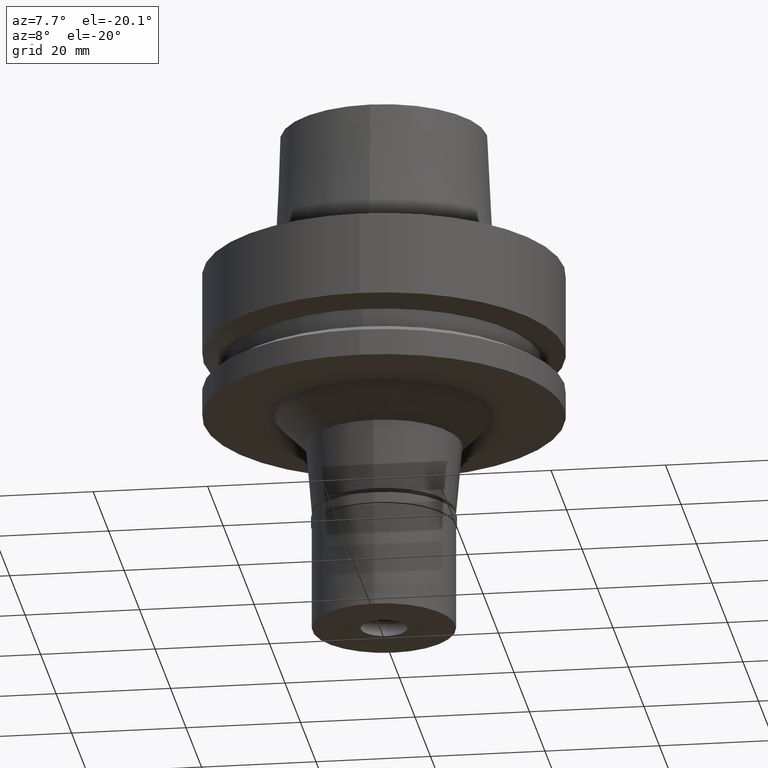
[diagram: clean part render]
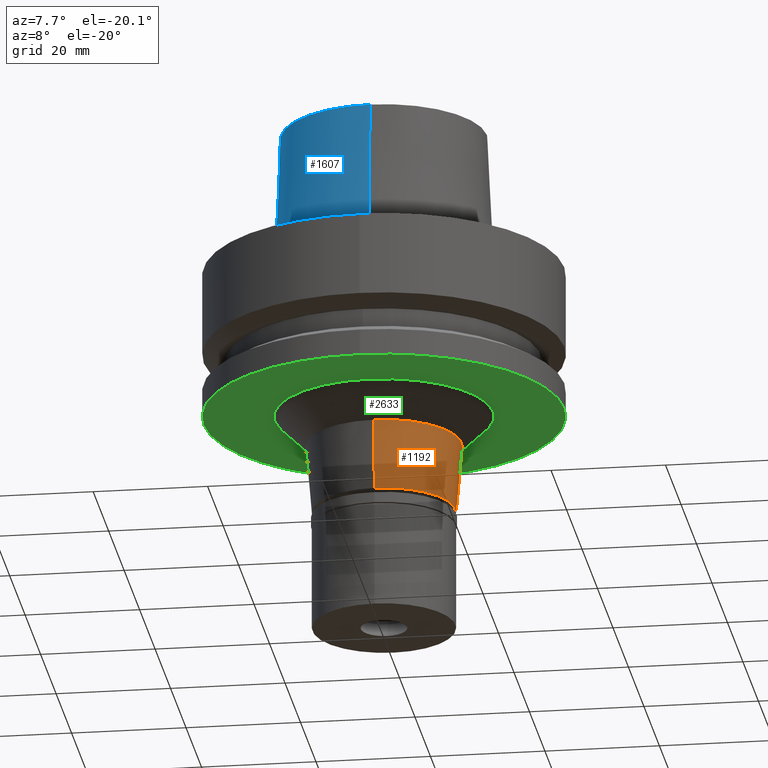
[diagram: same view with three faces highlighted in distinct colors, each labeled with its STEP entity id]
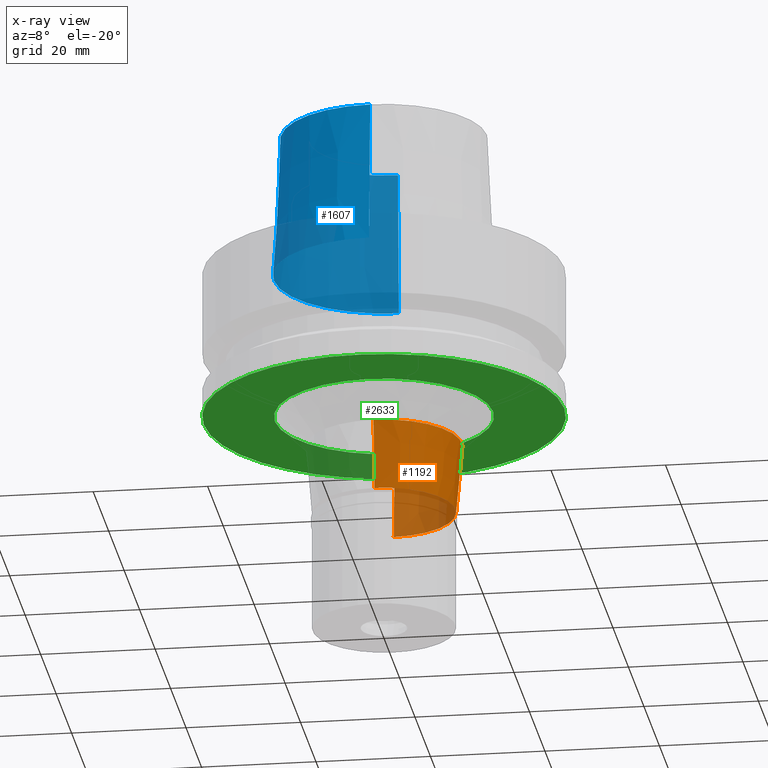
[diagram: x-ray of the same camera — body ghosted, the three highlighted faces saturated]
A machine part, auxiliary view with three faces highlighted in distinct colors.
The next image is the same camera in x-ray (body ghosted, the three faces saturated) — at least one of them is partly hidden behind the body in this view.
Their STEP definitions:

[orange] entity #1192 — the highlighted conical surface has half-angle 5 deg.
#20 = EDGE_LOOP ( 'NONE', ( #954, #818, #1696, #1709 ) ) ;
#90 = CARTESIAN_POINT ( 'NONE',  ( 0.0000000000000000000, 0.0000000000000000000, -31.50000000000000000 ) ) ;
#240 = VERTEX_POINT ( 'NONE', #1442 ) ;
#283 = DIRECTION ( 'NONE',  ( 0.0000000000000000000, -1.000000000000000000, 0.0000000000000000000 ) ) ;
#647 = VECTOR ( 'NONE', #975, 1000.000000000000000 ) ;
#663 = CARTESIAN_POINT ( 'NONE',  ( 0.0000000000000000000, -13.56736169502000067, -31.50000000000000000 ) ) ;
#715 = DIRECTION ( 'NONE',  ( 0.0000000000000000000, -1.000000000000000000, 0.0000000000000000000 ) ) ;
#806 = CARTESIAN_POINT ( 'NONE',  ( 0.0000000000000000000, 13.56736169502000067, -31.50000000000000000 ) ) ;
#818 = ORIENTED_EDGE ( 'NONE', *, *, #2692, .T. ) ;
#875 = CIRCLE ( 'NONE', #2391, 12.50000000000000000 ) ;
#909 = AXIS2_PLACEMENT_3D ( 'NONE', #1695, #1901, #2769 ) ;
#914 = VERTEX_POINT ( 'NONE', #1663 ) ;
#945 = VERTEX_POINT ( 'NONE', #2055 ) ;
#954 = ORIENTED_EDGE ( 'NONE', *, *, #2390, .F. ) ;
#975 = DIRECTION ( 'NONE',  ( 0.0000000000000000000, -0.08715574274778295494, -0.9961946980917345540 ) ) ;
#1000 = VECTOR ( 'NONE', #2569, 1000.000000000000000 ) ;
#1050 = EDGE_CURVE ( 'NONE', #2671, #240, #2723, .T. ) ;
#1147 = CONICAL_SURFACE ( 'NONE', #909, 13.03368084751000033, 0.08726646259969973729 ) ;
#1192 = ADVANCED_FACE ( 'NONE', ( #1521 ), #1147, .T. ) ;
#1442 = CARTESIAN_POINT ( 'NONE',  ( 0.0000000000000000000, 12.50000000000000000, -43.70000000000000284 ) ) ;
#1520 = LINE ( 'NONE', #663, #1000 ) ;
#1521 = FACE_OUTER_BOUND ( 'NONE', #20, .T. ) ;
#1545 = AXIS2_PLACEMENT_3D ( 'NONE', #90, #2229, #283 ) ;
#1663 = CARTESIAN_POINT ( 'NONE',  ( 0.0000000000000000000, -12.50000000000000000, -43.70000000000000284 ) ) ;
#1695 = CARTESIAN_POINT ( 'NONE',  ( 0.0000000000000000000, 0.0000000000000000000, -37.60000000000000142 ) ) ;
#1696 = ORIENTED_EDGE ( 'NONE', *, *, #2347, .T. ) ;
#1709 = ORIENTED_EDGE ( 'NONE', *, *, #1050, .F. ) ;
#1901 = DIRECTION ( 'NONE',  ( 0.0000000000000000000, 0.0000000000000000000, 1.000000000000000000 ) ) ;
#2040 = CARTESIAN_POINT ( 'NONE',  ( 0.0000000000000000000, 0.0000000000000000000, -43.70000000000000284 ) ) ;
#2055 = CARTESIAN_POINT ( 'NONE',  ( 0.0000000000000000000, -13.56736169502000067, -31.50000000000000000 ) ) ;
#2229 = DIRECTION ( 'NONE',  ( 0.0000000000000000000, 0.0000000000000000000, 1.000000000000000000 ) ) ;
#2242 = DIRECTION ( 'NONE',  ( 0.0000000000000000000, 0.0000000000000000000, 1.000000000000000000 ) ) ;
#2260 = CIRCLE ( 'NONE', #1545, 13.56736169502000067 ) ;
#2347 = EDGE_CURVE ( 'NONE', #914, #240, #875, .T. ) ;
#2390 = EDGE_CURVE ( 'NONE', #945, #2671, #2260, .T. ) ;
#2391 = AXIS2_PLACEMENT_3D ( 'NONE', #2040, #2242, #715 ) ;
#2569 = DIRECTION ( 'NONE',  ( 0.0000000000000000000, 0.08715574274778295494, -0.9961946980917345540 ) ) ;
#2671 = VERTEX_POINT ( 'NONE', #2780 ) ;
#2692 = EDGE_CURVE ( 'NONE', #945, #914, #1520, .T. ) ;
#2723 = LINE ( 'NONE', #806, #647 ) ;
#2769 = DIRECTION ( 'NONE',  ( 0.0000000000000000000, 1.000000000000000000, 0.0000000000000000000 ) ) ;
#2780 = CARTESIAN_POINT ( 'NONE',  ( 0.0000000000000000000, 13.56736169502000067, -31.50000000000000000 ) ) ;

[blue] entity #1607 — the highlighted conical surface has half-angle 2.862 deg.
#39 = LINE ( 'NONE', #304, #1766 ) ;
#59 = ORIENTED_EDGE ( 'NONE', *, *, #2094, .F. ) ;
#172 = ORIENTED_EDGE ( 'NONE', *, *, #318, .T. ) ;
#304 = CARTESIAN_POINT ( 'NONE',  ( 0.0000000000000000000, -18.00000182882000033, 25.00000000000000000 ) ) ;
#318 = EDGE_CURVE ( 'NONE', #2378, #1269, #2211, .T. ) ;
#329 = CONICAL_SURFACE ( 'NONE', #1006, 18.62500068580999724, 0.04995830450907576964 ) ;
#510 = ORIENTED_EDGE ( 'NONE', *, *, #846, .T. ) ;
#523 = VERTEX_POINT ( 'NONE', #1886 ) ;
#634 = DIRECTION ( 'NONE',  ( 0.0000000000000000000, 0.0000000000000000000, 1.000000000000000000 ) ) ;
#700 = VERTEX_POINT ( 'NONE', #2386 ) ;
#706 = DIRECTION ( 'NONE',  ( 0.0000000000000000000, -1.000000000000000000, 0.0000000000000000000 ) ) ;
#738 = CARTESIAN_POINT ( 'NONE',  ( 0.0000000000000000000, 0.0000000000000000000, 12.50000000000000000 ) ) ;
#846 = EDGE_CURVE ( 'NONE', #1269, #700, #2411, .T. ) ;
#946 = FACE_OUTER_BOUND ( 'NONE', #2327, .T. ) ;
#1006 = AXIS2_PLACEMENT_3D ( 'NONE', #738, #1789, #706 ) ;
#1020 = ORIENTED_EDGE ( 'NONE', *, *, #2597, .T. ) ;
#1200 = CARTESIAN_POINT ( 'NONE',  ( 0.0000000000000000000, -18.00000182882000033, 25.00000000000000000 ) ) ;
#1266 = CARTESIAN_POINT ( 'NONE',  ( 0.0000000000000000000, 0.0000000000000000000, 5.115907697473000027E-13 ) ) ;
#1269 = VERTEX_POINT ( 'NONE', #1613 ) ;
#1466 = AXIS2_PLACEMENT_3D ( 'NONE', #1888, #2762, #2090 ) ;
#1607 = ADVANCED_FACE ( 'NONE', ( #946 ), #329, .T. ) ;
#1613 = CARTESIAN_POINT ( 'NONE',  ( 0.0000000000000000000, 18.00000182882000033, 25.00000000000000000 ) ) ;
#1766 = VECTOR ( 'NONE', #1808, 999.9999999999998863 ) ;
#1789 = DIRECTION ( 'NONE',  ( 0.0000000000000000000, 0.0000000000000000000, -1.000000000000000000 ) ) ;
#1808 = DIRECTION ( 'NONE',  ( 0.0000000000000000000, -0.04993752584486958745, -0.9987523434327917338 ) ) ;
#1815 = VECTOR ( 'NONE', #2612, 999.9999999999998863 ) ;
#1886 = CARTESIAN_POINT ( 'NONE',  ( 0.0000000000000000000, -19.24999954280000125, 3.410605131648000255E-13 ) ) ;
#1888 = CARTESIAN_POINT ( 'NONE',  ( 0.0000000000000000000, 0.0000000000000000000, 25.00000000000000000 ) ) ;
#1900 = DIRECTION ( 'NONE',  ( 0.0000000000000000000, 1.000000000000000000, 0.0000000000000000000 ) ) ;
#2090 = DIRECTION ( 'NONE',  ( 0.0000000000000000000, -1.000000000000000000, 0.0000000000000000000 ) ) ;
#2094 = EDGE_CURVE ( 'NONE', #2378, #523, #39, .T. ) ;
#2211 = CIRCLE ( 'NONE', #1466, 18.00000182882000033 ) ;
#2327 = EDGE_LOOP ( 'NONE', ( #1020, #59, #172, #510 ) ) ;
#2378 = VERTEX_POINT ( 'NONE', #1200 ) ;
#2386 = CARTESIAN_POINT ( 'NONE',  ( 0.0000000000000000000, 19.24999954280000125, 3.410605131648000255E-13 ) ) ;
#2411 = LINE ( 'NONE', #2451, #1815 ) ;
#2451 = CARTESIAN_POINT ( 'NONE',  ( 0.0000000000000000000, 18.00000182882000033, 25.00000000000000000 ) ) ;
#2574 = AXIS2_PLACEMENT_3D ( 'NONE', #1266, #634, #1900 ) ;
#2597 = EDGE_CURVE ( 'NONE', #700, #523, #2666, .T. ) ;
#2612 = DIRECTION ( 'NONE',  ( 0.0000000000000000000, 0.04993752584486958745, -0.9987523434327917338 ) ) ;
#2666 = CIRCLE ( 'NONE', #2574, 19.24999954280000125 ) ;
#2762 = DIRECTION ( 'NONE',  ( 0.0000000000000000000, 0.0000000000000000000, -1.000000000000000000 ) ) ;

[green] entity #2633 — the highlighted planar face has unit normal (0, 0, 1).
#81 = ORIENTED_EDGE ( 'NONE', *, *, #1392, .F. ) ;
#144 = CIRCLE ( 'NONE', #2084, 19.06736169501999711 ) ;
#158 = EDGE_CURVE ( 'NONE', #1871, #600, #1947, .T. ) ;
#200 = AXIS2_PLACEMENT_3D ( 'NONE', #1839, #560, #1458 ) ;
#274 = CIRCLE ( 'NONE', #640, 31.50000000000000000 ) ;
#409 = ORIENTED_EDGE ( 'NONE', *, *, #2619, .F. ) ;
#560 = DIRECTION ( 'NONE',  ( 0.0000000000000000000, 0.0000000000000000000, 1.000000000000000000 ) ) ;
#578 = ORIENTED_EDGE ( 'NONE', *, *, #1178, .F. ) ;
#600 = VERTEX_POINT ( 'NONE', #626 ) ;
#626 = CARTESIAN_POINT ( 'NONE',  ( 0.0000000000000000000, -31.50000000000000000, -26.00000000000000000 ) ) ;
#640 = AXIS2_PLACEMENT_3D ( 'NONE', #1736, #2585, #2781 ) ;
#652 = DIRECTION ( 'NONE',  ( 0.0000000000000000000, 0.0000000000000000000, 1.000000000000000000 ) ) ;
#688 = EDGE_LOOP ( 'NONE', ( #81, #409 ) ) ;
#797 = CARTESIAN_POINT ( 'NONE',  ( 0.0000000000000000000, 19.06736169501999711, -26.00000000000000000 ) ) ;
#880 = DIRECTION ( 'NONE',  ( 1.000000000000000000, 0.0000000000000000000, 0.0000000000000000000 ) ) ;
#967 = VERTEX_POINT ( 'NONE', #1243 ) ;
#1045 = CARTESIAN_POINT ( 'NONE',  ( 0.0000000000000000000, 0.0000000000000000000, -26.00000000000000000 ) ) ;
#1052 = VERTEX_POINT ( 'NONE', #797 ) ;
#1178 = EDGE_CURVE ( 'NONE', #600, #1871, #274, .T. ) ;
#1226 = FACE_OUTER_BOUND ( 'NONE', #1395, .T. ) ;
#1243 = CARTESIAN_POINT ( 'NONE',  ( 0.0000000000000000000, -19.06736169501999711, -26.00000000000000000 ) ) ;
#1392 = EDGE_CURVE ( 'NONE', #1052, #967, #1537, .T. ) ;
#1395 = EDGE_LOOP ( 'NONE', ( #1617, #578 ) ) ;
#1458 = DIRECTION ( 'NONE',  ( 0.0000000000000000000, 1.000000000000000000, 0.0000000000000000000 ) ) ;
#1537 = CIRCLE ( 'NONE', #2423, 19.06736169501999711 ) ;
#1617 = ORIENTED_EDGE ( 'NONE', *, *, #158, .F. ) ;
#1693 = CARTESIAN_POINT ( 'NONE',  ( 0.0000000000000000000, 31.50000000000000000, -26.00000000000000000 ) ) ;
#1736 = CARTESIAN_POINT ( 'NONE',  ( 0.0000000000000000000, 0.0000000000000000000, -26.00000000000000000 ) ) ;
#1839 = CARTESIAN_POINT ( 'NONE',  ( 0.0000000000000000000, 0.0000000000000000000, -26.00000000000000000 ) ) ;
#1871 = VERTEX_POINT ( 'NONE', #1693 ) ;
#1925 = PLANE ( 'NONE',  #2172 ) ;
#1947 = CIRCLE ( 'NONE', #200, 31.50000000000000000 ) ;
#2047 = CARTESIAN_POINT ( 'NONE',  ( 0.0000000000000000000, 0.0000000000000000000, -26.00000000000000000 ) ) ;
#2065 = FACE_BOUND ( 'NONE', #688, .T. ) ;
#2084 = AXIS2_PLACEMENT_3D ( 'NONE', #1045, #2752, #2276 ) ;
#2146 = CARTESIAN_POINT ( 'NONE',  ( 0.0000000000000000000, 0.0000000000000000000, -26.00000000000000000 ) ) ;
#2172 = AXIS2_PLACEMENT_3D ( 'NONE', #2146, #652, #880 ) ;
#2276 = DIRECTION ( 'NONE',  ( 0.0000000000000000000, -1.000000000000000000, 0.0000000000000000000 ) ) ;
#2407 = DIRECTION ( 'NONE',  ( 0.0000000000000000000, 0.0000000000000000000, -1.000000000000000000 ) ) ;
#2423 = AXIS2_PLACEMENT_3D ( 'NONE', #2047, #2407, #2596 ) ;
#2585 = DIRECTION ( 'NONE',  ( 0.0000000000000000000, 0.0000000000000000000, 1.000000000000000000 ) ) ;
#2596 = DIRECTION ( 'NONE',  ( 0.0000000000000000000, 1.000000000000000000, 0.0000000000000000000 ) ) ;
#2619 = EDGE_CURVE ( 'NONE', #967, #1052, #144, .T. ) ;
#2633 = ADVANCED_FACE ( 'NONE', ( #1226, #2065 ), #1925, .F. ) ;
#2752 = DIRECTION ( 'NONE',  ( 0.0000000000000000000, 0.0000000000000000000, -1.000000000000000000 ) ) ;
#2781 = DIRECTION ( 'NONE',  ( 0.0000000000000000000, -1.000000000000000000, 0.0000000000000000000 ) ) ;